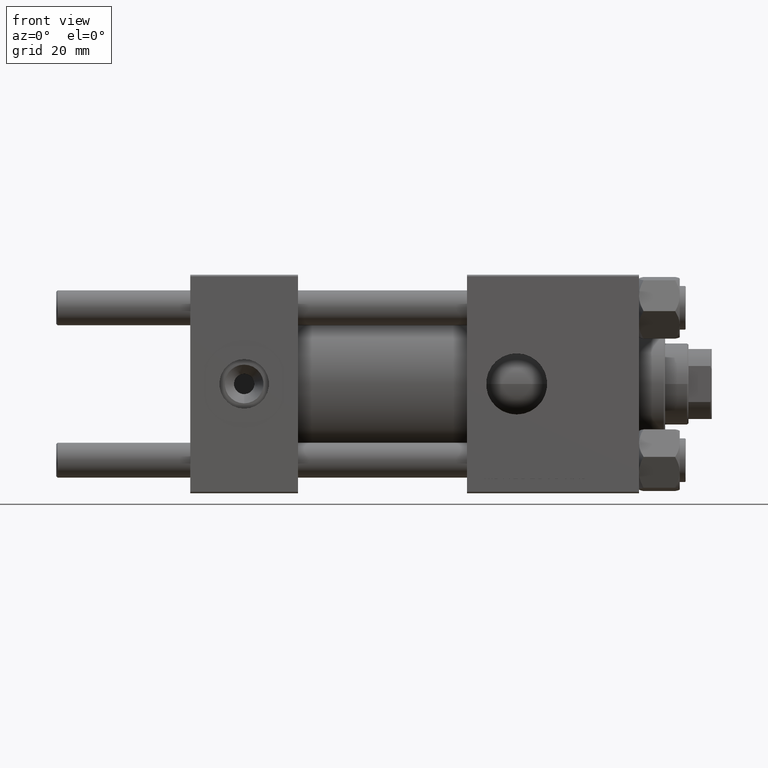
[diagram: clean part render]
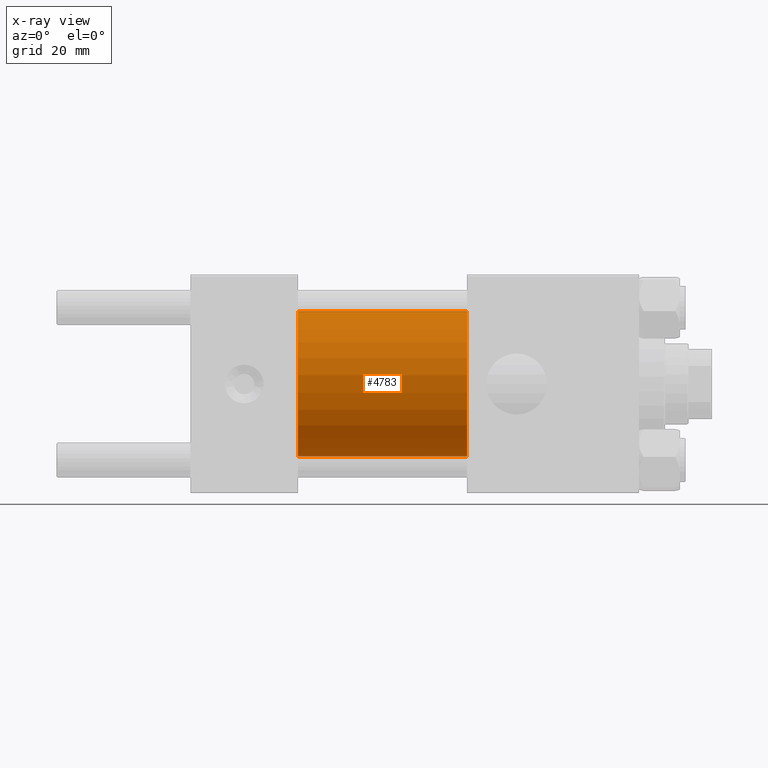
[diagram: x-ray — body ghosted, one internal face saturated and labeled with its STEP entity id]
A machine part, front view, then the same camera in x-ray: the body is ghosted and one INTERNAL B-rep face — a face not visible from any outside direction — is saturated and labeled: STEP entity #4783.
In plain terms, the highlighted cylindrical surface (partial cylindrical patch) has radius 25 mm, axis along (-1, -0, -0).
Its self-contained STEP definition (entity closure, byte-faithful):
#822 = DIRECTION ( 'NONE',  ( 1.000000000000000000, 0.000000000000000000, 0.000000000000000000 ) ) ;
#1272 = EDGE_CURVE ( 'NONE', #31971, #32175, #1908, .T. ) ;
#1908 = LINE ( 'NONE', #38473, #32264 ) ;
#3119 = AXIS2_PLACEMENT_3D ( 'NONE', #36890, #822, #48982 ) ;
#3907 = VERTEX_POINT ( 'NONE', #8661 ) ;
#4780 = CARTESIAN_POINT ( 'NONE',  ( 95.00000000000000000, 0.000000000000000000, 0.000000000000000000 ) ) ;
#4783 = ADVANCED_FACE ( 'NONE', ( #12938 ), #46529, .F. ) ;
#5697 = CIRCLE ( 'NONE', #3119, 25.00000000000000000 ) ;
#8159 = CARTESIAN_POINT ( 'NONE',  ( 37.00000000000000000, 0.000000000000000000, 25.00000000000000000 ) ) ;
#8160 = LINE ( 'NONE', #12108, #8216 ) ;
#8216 = VECTOR ( 'NONE', #51857, 1000.000000000000000 ) ;
#8661 = CARTESIAN_POINT ( 'NONE',  ( 95.00000000000000000, 3.061616997868382254E-15, -25.00000000000000000 ) ) ;
#8947 = DIRECTION ( 'NONE',  ( 0.000000000000000000, 0.000000000000000000, -1.000000000000000000 ) ) ;
#10141 = EDGE_CURVE ( 'NONE', #3907, #37355, #8160, .T. ) ;
#11247 = EDGE_CURVE ( 'NONE', #31971, #3907, #48558, .T. ) ;
#12108 = CARTESIAN_POINT ( 'NONE',  ( 95.00000000000000000, 3.061616997868382254E-15, -25.00000000000000000 ) ) ;
#12897 = DIRECTION ( 'NONE',  ( 1.000000000000000000, 0.000000000000000000, 0.000000000000000000 ) ) ;
#12938 = FACE_OUTER_BOUND ( 'NONE', #14297, .T. ) ;
#14104 = AXIS2_PLACEMENT_3D ( 'NONE', #32912, #12897, #8947 ) ;
#14297 = EDGE_LOOP ( 'NONE', ( #24589, #50736, #50345, #33788 ) ) ;
#14418 = CARTESIAN_POINT ( 'NONE',  ( 37.00000000000000000, 3.061616997868382254E-15, -25.00000000000000000 ) ) ;
#24589 = ORIENTED_EDGE ( 'NONE', *, *, #11247, .T. ) ;
#25320 = DIRECTION ( 'NONE',  ( 0.000000000000000000, 0.000000000000000000, 1.000000000000000000 ) ) ;
#26524 = DIRECTION ( 'NONE',  ( -1.000000000000000000, -0.000000000000000000, -0.000000000000000000 ) ) ;
#29061 = AXIS2_PLACEMENT_3D ( 'NONE', #4780, #26524, #25320 ) ;
#30571 = DIRECTION ( 'NONE',  ( -1.000000000000000000, -0.000000000000000000, -0.000000000000000000 ) ) ;
#31971 = VERTEX_POINT ( 'NONE', #47117 ) ;
#32175 = VERTEX_POINT ( 'NONE', #8159 ) ;
#32264 = VECTOR ( 'NONE', #30571, 1000.000000000000000 ) ;
#32912 = CARTESIAN_POINT ( 'NONE',  ( 95.00000000000000000, 0.000000000000000000, 0.000000000000000000 ) ) ;
#33788 = ORIENTED_EDGE ( 'NONE', *, *, #1272, .F. ) ;
#36340 = EDGE_CURVE ( 'NONE', #32175, #37355, #5697, .T. ) ;
#36890 = CARTESIAN_POINT ( 'NONE',  ( 37.00000000000000000, 0.000000000000000000, 0.000000000000000000 ) ) ;
#37355 = VERTEX_POINT ( 'NONE', #14418 ) ;
#38473 = CARTESIAN_POINT ( 'NONE',  ( 95.00000000000000000, 0.000000000000000000, 25.00000000000000000 ) ) ;
#46529 = CYLINDRICAL_SURFACE ( 'NONE', #29061, 25.00000000000000000 ) ;
#47117 = CARTESIAN_POINT ( 'NONE',  ( 95.00000000000000000, 0.000000000000000000, 25.00000000000000000 ) ) ;
#48558 = CIRCLE ( 'NONE', #14104, 25.00000000000000000 ) ;
#48982 = DIRECTION ( 'NONE',  ( 0.000000000000000000, 0.000000000000000000, -1.000000000000000000 ) ) ;
#50345 = ORIENTED_EDGE ( 'NONE', *, *, #36340, .F. ) ;
#50736 = ORIENTED_EDGE ( 'NONE', *, *, #10141, .T. ) ;
#51857 = DIRECTION ( 'NONE',  ( -1.000000000000000000, -0.000000000000000000, -0.000000000000000000 ) ) ;